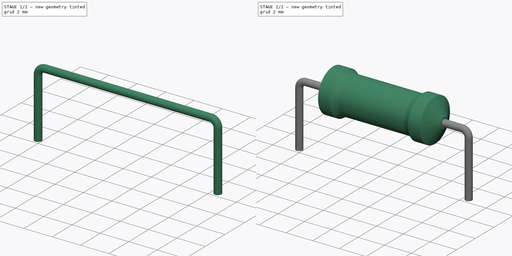
[diagram: build sequence overview — one tinted view per stage of 2, left to right]
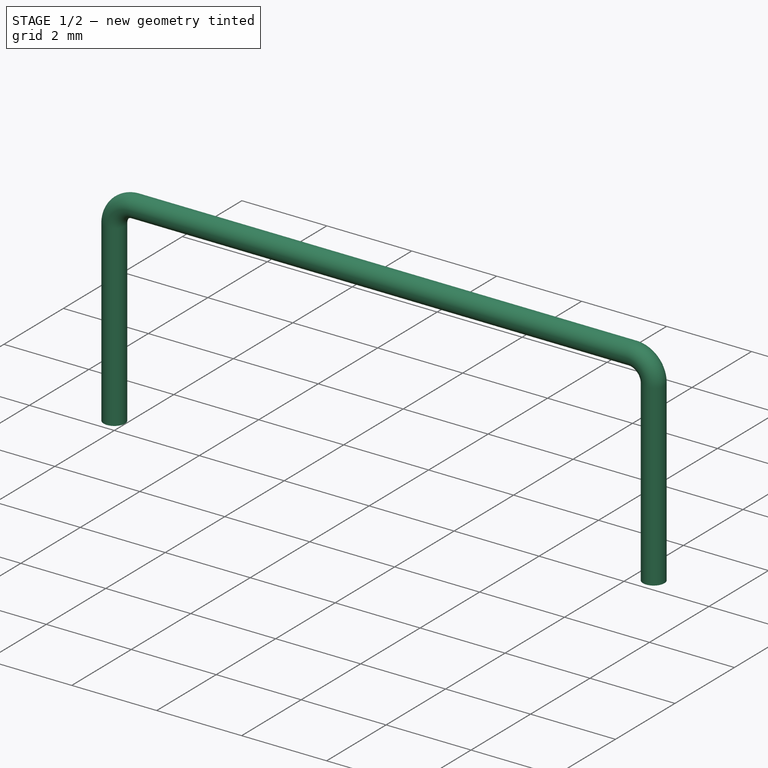
[diagram: stage 1 of 2 — iso view after this stage's code; geometry added in this stage tinted green]
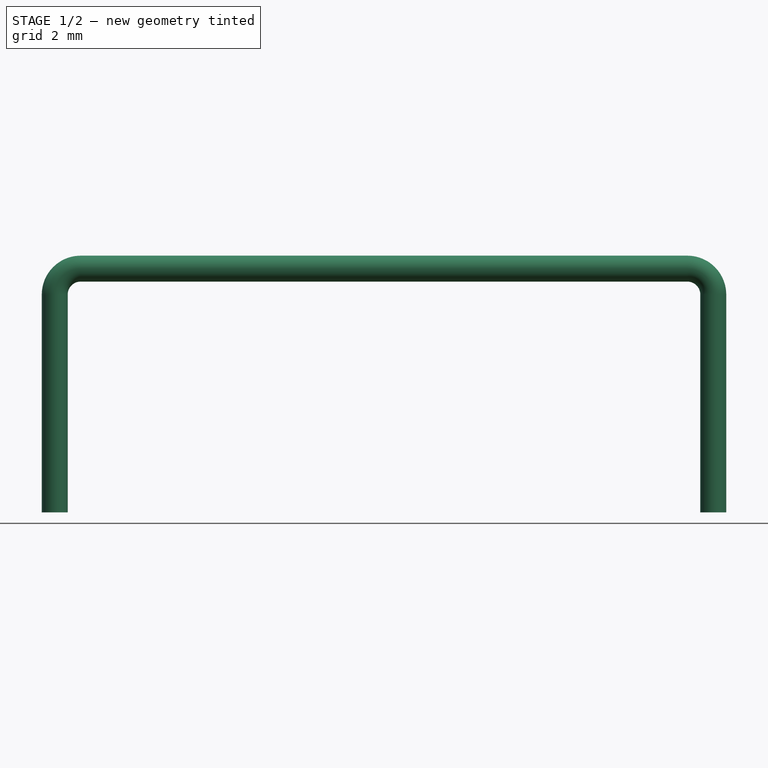
[diagram: stage 1 of 2 — front view after this stage's code; geometry added in this stage tinted green]
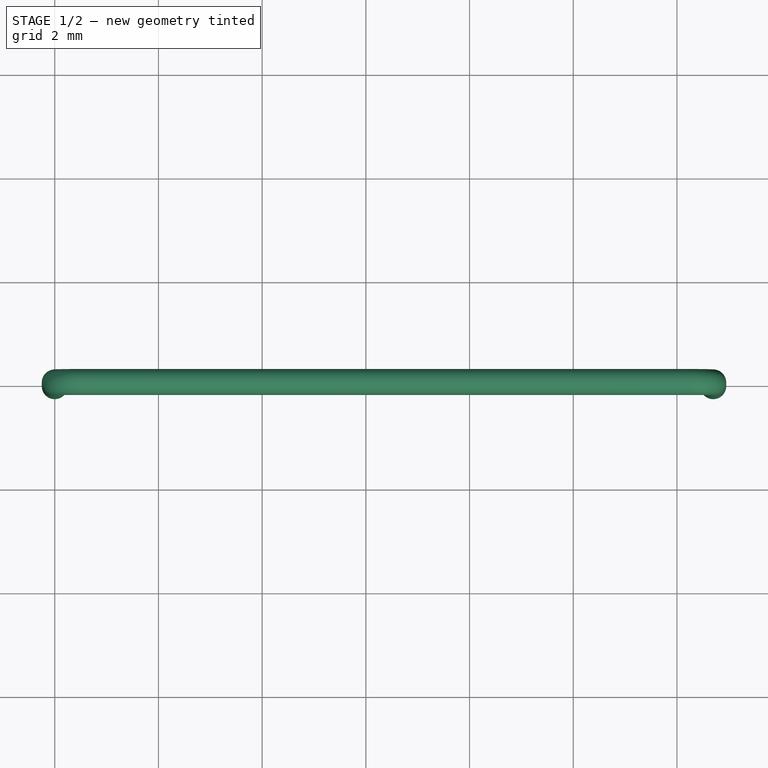
[diagram: stage 1 of 2 — top view after this stage's code; geometry added in this stage tinted green]
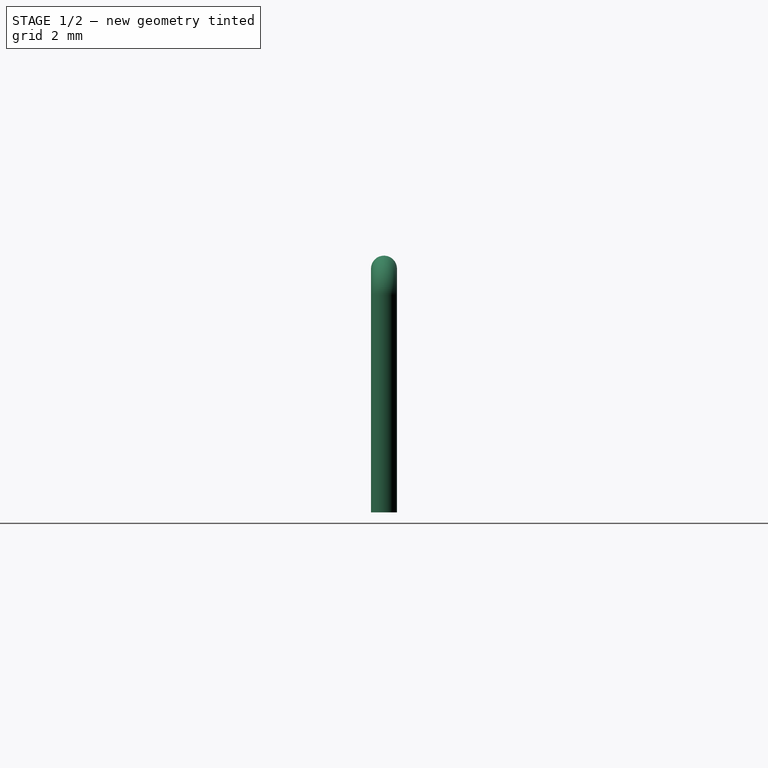
[diagram: stage 1 of 2 — right view after this stage's code; geometry added in this stage tinted green]
FCSTD DOCUMENT  (FreeCAD 0.16R6703 (Git))
Label: Resistor_Axial_DIN0309_L9.0mm_D3.2mm_P12.70mm_Horizontal
License: All rights reserved
LicenseURL: http://en.wikipedia.org/wiki/All_rights_reserved
objects: Sketcher::SketchObject×3, PartDesign::Revolution×1, Spreadsheet::Sheet×1, Part::Sweep×1
note: 6 computed .brp shape members not serialized (recipe doc carries the construction recipe); baked Part::Feature solids carry a one-line shape summary decoded from their .brp

FEATURE [Spreadsheet::Sheet] Spreadsheet  label="dimensions"
  cells = A1=L; B1(L)=9; A2=d; B2(d)=3.2; C2=0; A3=RM; B3(RM)=12.7; A4=d_wire; B4(d_wire)=0.5
FEATURE [Sketcher::SketchObject] Sketch
  Placement = pos=(0,0,-2) rot=(0,0,1;0rad)
  expr: Constraints[1] = dimensions.d_wire / 2
  sketch-geometry (1):
    g0: Circle CenterX=0 CenterY=0 CenterZ=0 NormalX=0 NormalY=0 NormalZ=1 Radius=0.25
  constraints (2):
    c: Coincident(g0,g-1)
    c: Radius(g0) = 0.25
FEATURE [Part::Sweep] Sweep
  Frenet = false
  Sections = -> [Sketch]
  Solid = true
  Spine = -> Sketch001
  Transition = 1
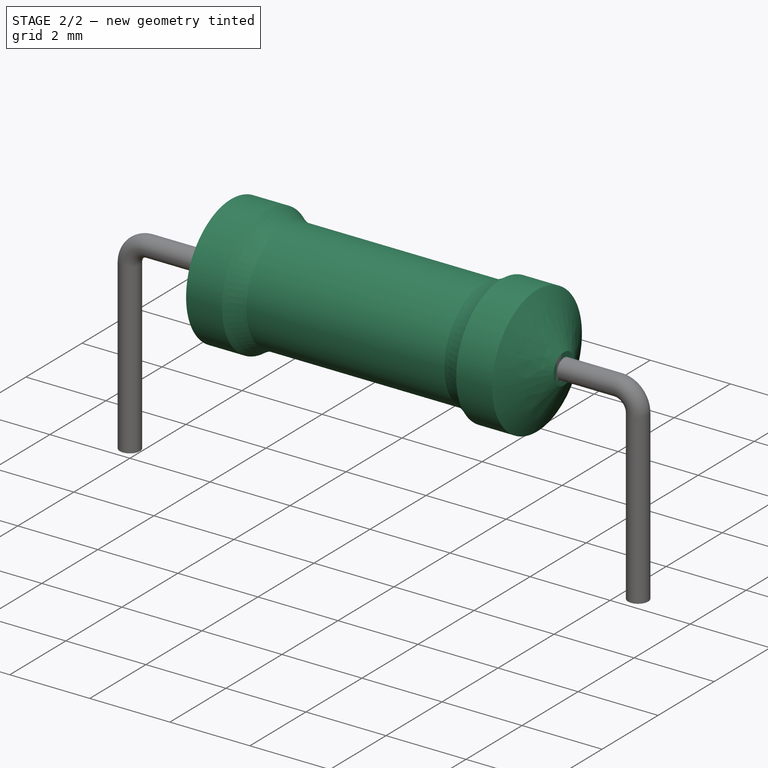
[diagram: stage 2 of 2 — iso view after this stage's code; geometry added in this stage tinted green]
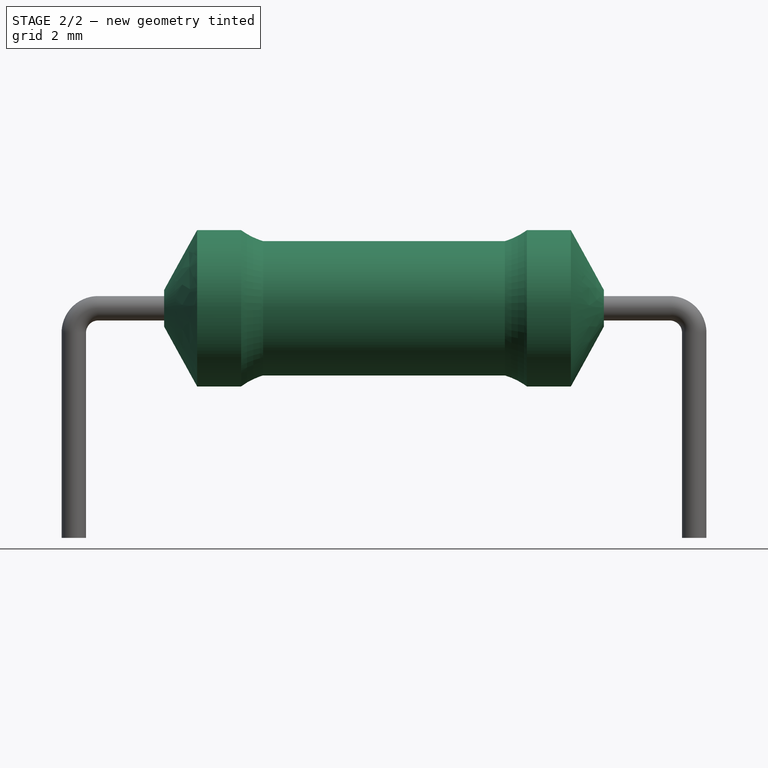
[diagram: stage 2 of 2 — front view after this stage's code; geometry added in this stage tinted green]
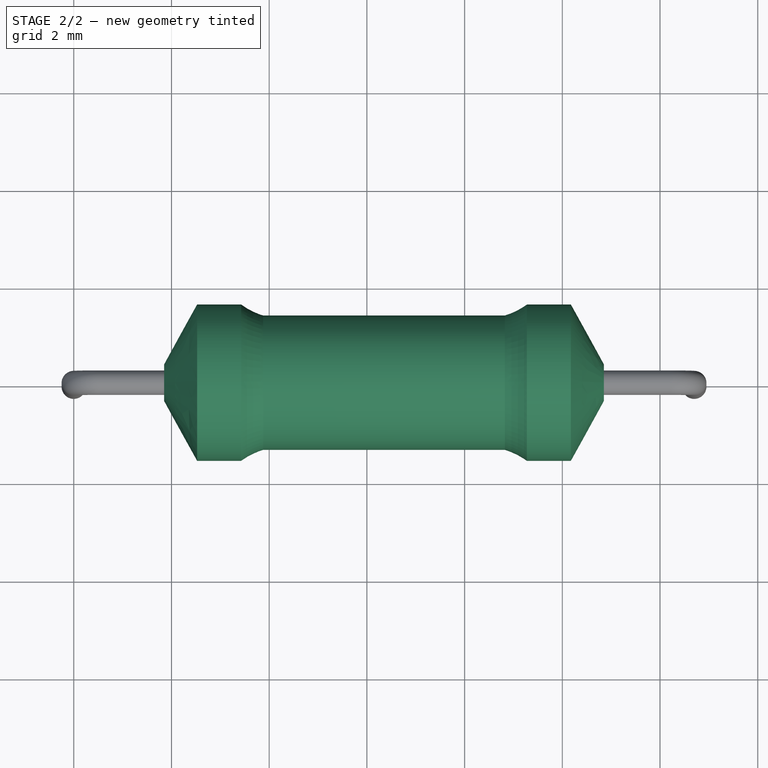
[diagram: stage 2 of 2 — top view after this stage's code; geometry added in this stage tinted green]
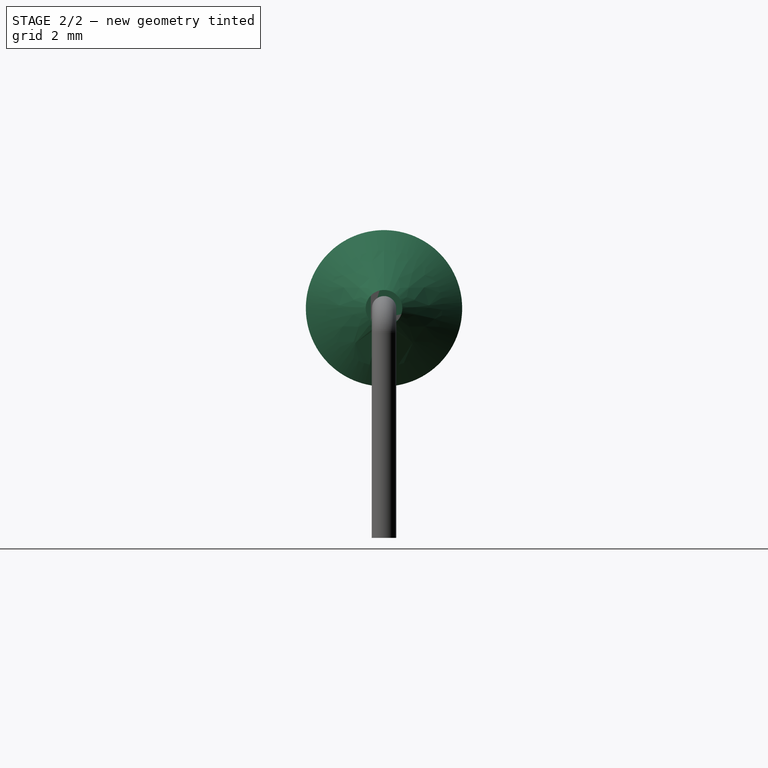
[diagram: stage 2 of 2 — right view after this stage's code; geometry added in this stage tinted green]
FEATURE [Sketcher::SketchObject] Sketch001
  Placement = pos=(0,0,0) rot=(1,0,0;1.5708rad)
  expr: Constraints[15] = dimensions.d_wire
  expr: Constraints[20] = dimensions.d_wire
  expr: Constraints[18] = dimensions.d / 2 + 0.1
  expr: Constraints[12] = dimensions.RM
  expr: Constraints[7] = dimensions.d_wire
  sketch-geometry (7):
    g0: LineSegment StartX=0 StartY=-3 StartZ=0 EndX=0 EndY=1.2 EndZ=0
    g1: ArcOfCircle CenterX=0.5 CenterY=1.2 CenterZ=0 NormalX=0 NormalY=0 NormalZ=1 Radius=0.5 StartAngle=1.57081 EndAngle=3.14159
    g2: LineSegment [constr] StartX=0 StartY=1.2 StartZ=0 EndX=0.5 EndY=1.2 EndZ=0
    g3: LineSegment [constr] StartX=0.5 StartY=1.2 StartZ=0 EndX=0.5 EndY=1.7 EndZ=0
    g4: LineSegment StartX=0.499995 StartY=1.7 StartZ=0 EndX=12.2 EndY=1.7 EndZ=0
    g5: LineSegment StartX=12.7 StartY=1.2 StartZ=0 EndX=12.7 EndY=-3 EndZ=0
    g6: ArcOfCircle CenterX=12.2 CenterY=1.2 CenterZ=0 NormalX=0 NormalY=0 NormalZ=1 Radius=0.5 StartAngle=0 EndAngle=1.5708
  constraints (23):
    c: Vertical(g0)
    c: Coincident(g1,g0)
    c: Coincident(g2,g0)
    c: Coincident(g2,g1)
    c: Horizontal(g2)
    c: Coincident(g3,g1)
    c: Vertical(g3)
    c: DistanceY(g3,g3) = 0.5
    c: Coincident(g4,g1)
    c: Horizontal(g4)
    c: Vertical(g5)
    c: Equal(g5,g0)
    c: DistanceX(g-1,g5) = 12.7
    c: Coincident(g6,g4)
    c: Coincident(g6,g5)
    c: DistanceX(g6,g5) = 0.5
    c: PointOnObject(g0,g-2)
    c: DistanceY(g0,g-1) = 3
    c: DistanceY(g-1,g1) = 1.7
    c: DistanceY(g0,g5) = 0
    c: DistanceX(g0,g1) = 0.5
    c: DistanceX(g6,g4) = 0
    c: DistanceY(g6,g5) = 0
FEATURE [Sketcher::SketchObject] Sketch002  label="Axis0"
  Placement = pos=(0,0,0) rot=(1,0,0;1.5708rad)
  expr: Constraints[44] = dimensions.L * 0.05
  expr: Constraints[32] = dimensions.d_wire * 0.75
  expr: Constraints[8] = dimensions.d / 2 + 0.1
  expr: Constraints[18] = dimensions.L * 0.05
  expr: Constraints[1] = dimensions.L
  expr: Constraints[7] = (dimensions.RM - dimensions.L) / 2
  expr: Constraints[9] = dimensions.d / 2
  expr: Constraints[19] = dimensions.L * 0.075
  expr: Constraints[27] = dimensions.L * 0.05
  expr: Constraints[25] = dimensions.L * 0.075
  expr: Constraints[20] = dimensions.L * 0.025
  expr: Constraints[28] = dimensions.L * 0.05
  expr: Constraints[26] = dimensions.d / 2
  expr: Constraints[14] = dimensions.L * 0.1
  sketch-geometry (15):
    g0: LineSegment [constr] StartX=1.85 StartY=1.7 StartZ=0 EndX=10.85 EndY=1.7 EndZ=0
    g1: LineSegment [constr] StartX=1.85 StartY=1.7 StartZ=0 EndX=1.85 EndY=0 EndZ=0
    g2: LineSegment [constr] StartX=1.85 StartY=0 StartZ=0 EndX=0 EndY=0 EndZ=0
    g3: LineSegment [constr] StartX=2.525 StartY=3.3 StartZ=0 EndX=2.525 EndY=1.7 EndZ=0
    g4: LineSegment StartX=2.525 StartY=3.3 StartZ=0 EndX=3.425 EndY=3.3 EndZ=0
    g5: ArcOfCircle CenterX=4.325 CenterY=4.5375 CenterZ=0 NormalX=0 NormalY=0 NormalZ=1 Radius=1.53017 StartAngle=4.08359 EndAngle=4.41389
    g6: LineSegment StartX=3.875 StartY=3.075 StartZ=0 EndX=8.825 EndY=3.075 EndZ=0
    g7: ArcOfCircle CenterX=8.375 CenterY=4.5375 CenterZ=0 NormalX=0 NormalY=0 NormalZ=1 Radius=1.53017 StartAngle=5.01089 EndAngle=5.34119
    g8: LineSegment StartX=9.275 StartY=3.3 StartZ=0 EndX=10.175 EndY=3.3 EndZ=0
    g9: LineSegment [constr] StartX=121.07 StartY=-62.819 StartZ=0 EndX=-108.37 EndY=-62.819 EndZ=0
    g10: LineSegment StartX=1.85 StartY=1.7 StartZ=0 EndX=10.85 EndY=1.7 EndZ=0
    g11: LineSegment StartX=1.85 StartY=1.7 StartZ=0 EndX=1.85 EndY=2.075 EndZ=0
    g12: ArcOfCircle CenterX=121.07 CenterY=-62.819 CenterZ=0 NormalX=0 NormalY=0 NormalZ=1 Radius=135.737 StartAngle=2.63281 EndAngle=2.64312
    g13: LineSegment StartX=10.85 StartY=1.7 StartZ=0 EndX=10.85 EndY=2.075 EndZ=0
    g14: ArcOfCircle CenterX=-108.37 CenterY=-62.819 CenterZ=0 NormalX=0 NormalY=0 NormalZ=1 Radius=135.737 StartAngle=0.498474 EndAngle=0.508778
  constraints (45):
    c: Horizontal(g0)
    c: DistanceX(g0,g0) = 9
    c: Coincident(g1,g0)
    c: Vertical(g1)
    c: Coincident(g2,g1)
    c: Coincident(g2,g-1)
    c: Horizontal(g2)
    c: DistanceX(g2,g2) = 1.85
    c: DistanceY(g1,g1) = 1.7
    c: DistanceY(g3,g3) = 1.6
    c: PointOnObject(g3,g0)
    c: Perpendicular(g0,g3)
    c: Coincident(g4,g3)
    c: Horizontal(g4)
    c: DistanceX(g4,g4) = 0.9
    c: Coincident(g5,g4)
    c: Horizontal(g6)
    c: Coincident(g5,g6)
    c: DistanceX(g4,g5) = 0.45
    c: DistanceX(g0,g3) = 0.675
    c: DistanceY(g5,g4) = 0.225
    c: Coincident(g7,g6)
    c: Coincident(g8,g7)
    c: Horizontal(g8)
    c: Equal(g8,g4)
    c: DistanceX(g8,g0) = 0.675
    c: DistanceY(g0,g7) = 1.6
    c: DistanceX(g6,g7) = 0.45
    c: DistanceX(g7,g6) = 0.45
    c: Parallel(g0,g9)
    c: Coincident(g10,g0)
    c: Vertical(g11)
    c: DistanceY(g11,g11) = 0.375
    c: Coincident(g12,g11)
    c: Coincident(g12,g3)
    c: Coincident(g12,g9)
    c: Coincident(g11,g0)
    c: Coincident(g13,g0)
    c: Vertical(g13)
    c: Equal(g13,g11)
    c: Coincident(g14,g13)
    c: Coincident(g14,g9)
    c: Coincident(g8,g14)
    c: Coincident(g10,g0)
    c: DistanceX(g5,g5) = 0.45
FEATURE [PartDesign::Revolution] Revolution
  Angle = 360
  Axis = (9,0,0)
  Base = (1.85,0,1.7)
  Placement = pos=(0,0,0) rot=(1,0,0;1.5708rad)
  ReferenceAxis = -> Sketch002 [Axis0]
  Sketch = -> Sketch002
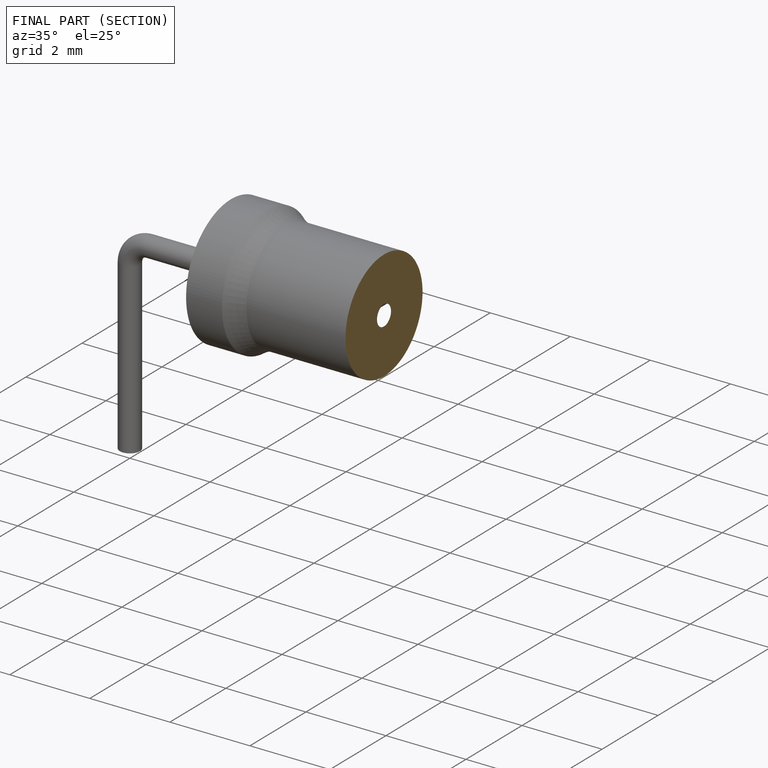
[diagram: finished part — half-section view (interior)]
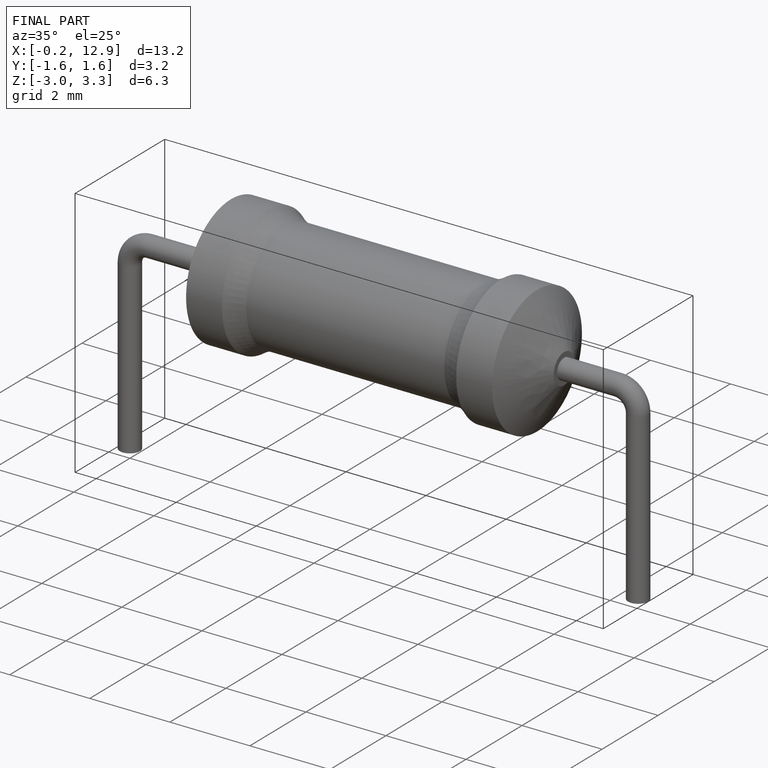
[diagram: finished part — iso view with bounding-box wireframe]
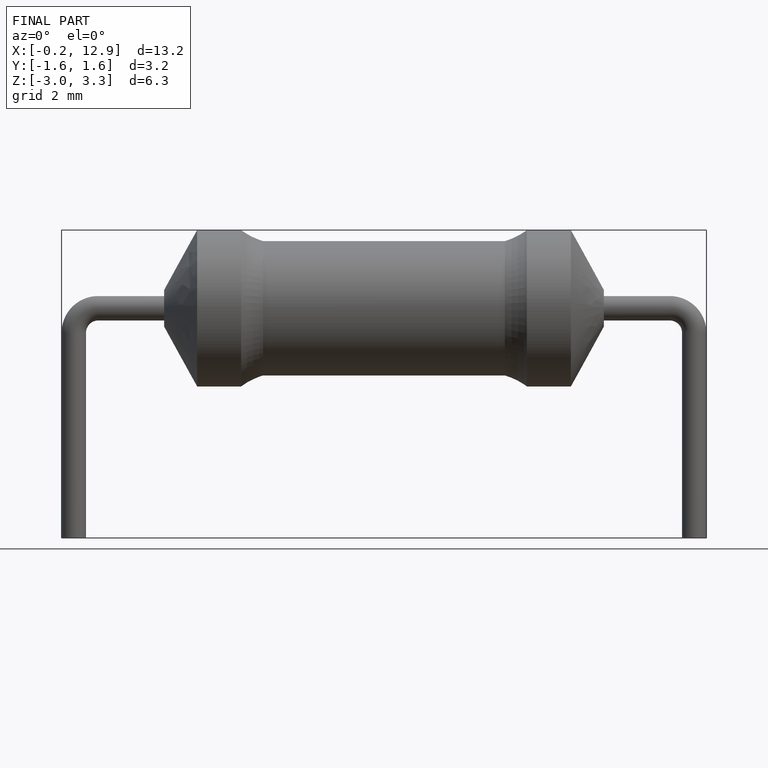
[diagram: finished part — front view with bounding-box wireframe]
